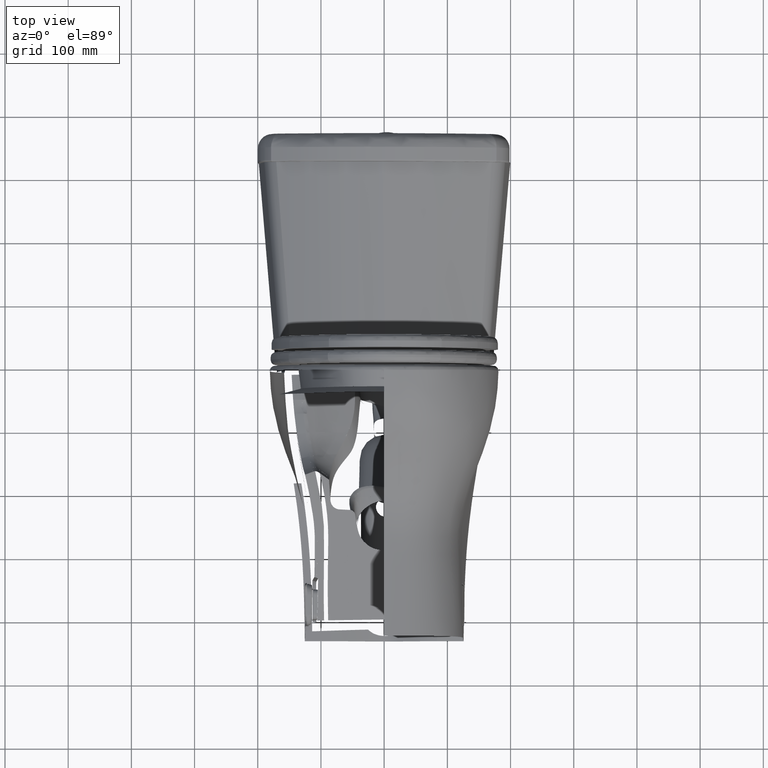
[diagram: clean part render]
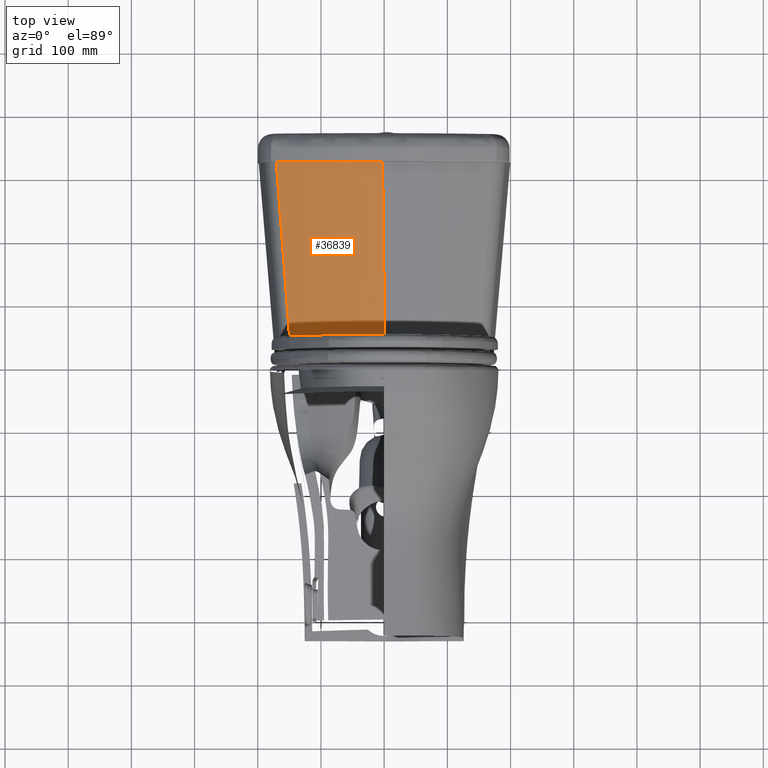
[diagram: same view with one face highlighted and labeled with its STEP entity id]
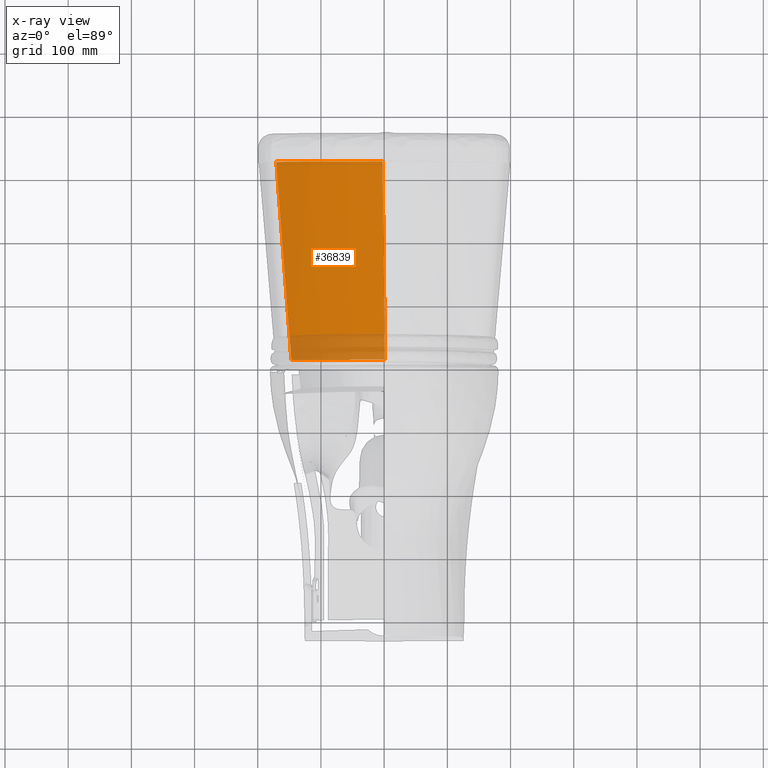
[diagram: x-ray of the same camera — body ghosted, the highlighted face saturated]
A machine part, top view. The second image highlights one B-rep face of the part: STEP entity #36839.
The next image is the same camera in x-ray: the body ghosted, the highlighted face saturated — about 12% of this face is hidden behind the body in this view.
In plain terms, the highlighted face is a freeform B-spline surface patch.
Its self-contained STEP definition (entity closure, byte-faithful):
#1863 = B_SPLINE_CURVE_WITH_KNOTS ( 'NONE', 3,
 ( #4499, #29446, #77283, #89532, #16754, #101733, #41126, #115035, #126246, #138452, #114512, #53853, #77790, #90069, #41630, #126758, #138955, #66084, #78317, #90589, #102786, #56469, #91105, #68160, #19345, #54904, #151693, #141536, #18840, #153774, #80915, #67129, #6587, #103821, #115565, #55420, #128858, #19879, #44736, #55941, #104339, #56971, #66617, #78840, #141022, #8164, #79374, #91629, #31020, #116583, #93177, #18316, #20399, #6070, #43705, #153266, #103299 ),
 .UNSPECIFIED., .F., .F.,
 ( 4, 2, 2, 1, 1, 1, 2, 2, 1, 1, 2, 2, 2, 2, 1, 1, 1, 2, 2, 1, 1, 2, 2, 2, 1, 1, 1, 1, 2, 2, 1, 1, 1, 2, 2, 2, 4 ),
 ( 0.0000000000000000000, 0.2499999999999329400, 0.3749999999998994700, 0.3906249999998953100, 0.3984374999998932500, 0.3994140624998930900, 0.3999023437498930300, 0.4003906249998929200, 0.4023437499998925900, 0.4062499999998916400, 0.4374999999998840900, 0.4999999999998687700, 0.6249999999998381300, 0.6874999999998229200, 0.6953124999998210300, 0.6992187499998201400, 0.6997070312498200300, 0.6999511718748200300, 0.7001953124998200300, 0.7011718749998203700, 0.7031249999998210300, 0.7187499999998263600, 0.7499999999998371300, 0.8124999999998588900, 0.8164062499998600000, 0.8183593749998604400, 0.8193359374998606700, 0.8198242187498611100, 0.8199462890623616700, 0.8200073242186118900, 0.8200683593748621100, 0.8203124999998624400, 0.8281249999998685500, 0.8437499999998804300, 0.8749999999999044100, 0.9374999999999522600, 1.000000000000000000 ),
 .UNSPECIFIED. ) ;
#4499 = CARTESIAN_POINT ( 'NONE',  ( -0.1009708943407856700, 2.007855135899559300, 12.85394922033267800 ) ) ;
#6070 = CARTESIAN_POINT ( 'NONE',  ( -6.310054709846395000, 3.320941673069696800, 12.85317582866769500 ) ) ;
#6587 = CARTESIAN_POINT ( 'NONE',  ( -4.924167115172977600, 2.791838382121605700, 12.85353780140835200 ) ) ;
#7658 = CARTESIAN_POINT ( 'NONE',  ( 0.04925238442629920700, 2.336544645559685200, 0.4863604973620472800 ) ) ;
#7848 = CARTESIAN_POINT ( 'NONE',  ( -3.912345336578346700, 2.829122161090865900, 0.4863604973620472300 ) ) ;
#8164 = CARTESIAN_POINT ( 'NONE',  ( -5.590960251819283600, 3.027941041854083100, 12.85343232102093800 ) ) ;
#16754 = CARTESIAN_POINT ( 'NONE',  ( -2.368883790437422000, 2.180741970589494400, 12.85379336504204400 ) ) ;
#18316 = CARTESIAN_POINT ( 'NONE',  ( -5.952700030900874000, 3.170189459257922100, 12.85333499023696800 ) ) ;
#18840 = CARTESIAN_POINT ( 'NONE',  ( -4.815762638485126400, 2.756690983426943700, 12.85355143473603200 ) ) ;
#19345 = CARTESIAN_POINT ( 'NONE',  ( -4.804830328791982000, 2.753186827105961000, 12.85355278269761900 ) ) ;
#19879 = CARTESIAN_POINT ( 'NONE',  ( -5.560990547422465900, 3.016597933556621800, 12.85343838161074000 ) ) ;
#19925 = EDGE_CURVE ( 'NONE', #35562, #116173, #1863, .T. ) ;
#20399 = CARTESIAN_POINT ( 'NONE',  ( -6.177621318259441300, 3.263376708686260400, 12.85324682759873100 ) ) ;
#21660 = CARTESIAN_POINT ( 'NONE',  ( -5.781204181066930100, 3.539269369709370700, 0.4863604973620472300 ) ) ;
#29446 = CARTESIAN_POINT ( 'NONE',  ( -0.6648024960916874000, 2.010465973864924600, 12.85391774152470000 ) ) ;
#31020 = CARTESIAN_POINT ( 'NONE',  ( -5.683115531178485100, 3.063120938988964400, 12.85341254599836900 ) ) ;
#33825 = CARTESIAN_POINT ( 'NONE',  ( -6.727633459999999800, 3.508353653551732300, 12.93478569421220600 ) ) ;
#34207 = DIRECTION ( 'NONE',  ( 0.07580901738328431300, 0.002476349914124766000, -0.9971192810163104200 ) ) ;
#35562 = VERTEX_POINT ( 'NONE', #141636 ) ;
#36103 = LINE ( 'NONE', #154891, #85511 ) ;
#36839 = ADVANCED_FACE ( 'NONE', ( #60020 ), #138058, .T. ) ;
#38952 = B_SPLINE_CURVE_WITH_KNOTS ( 'NONE', 6,
 ( #95439, #155006, #106091, #130588, #94932, #156045, #44927 ),
 .UNSPECIFIED., .F., .F.,
 ( 7, 7 ),
 ( 0.0000000000000000000, 0.1522200033905786700 ),
 .UNSPECIFIED. ) ;
#41126 = CARTESIAN_POINT ( 'NONE',  ( -2.741403669703184500, 2.244194735100808000, 12.85376144613703700 ) ) ;
#41630 = CARTESIAN_POINT ( 'NONE',  ( -2.946950297549087800, 2.281535613901883400, 12.85374342127313500 ) ) ;
#43402 = CARTESIAN_POINT ( 'NONE',  ( -0.9495624528669290900, 2.340360766401063100, 0.4863604973620472300 ) ) ;
#43705 = CARTESIAN_POINT ( 'NONE',  ( -6.540966903978241700, 3.424179355746784100, 12.85300938312781000 ) ) ;
#44736 = CARTESIAN_POINT ( 'NONE',  ( -5.570504500592838900, 3.020189663712593600, 12.85343648529373600 ) ) ;
#44927 = CARTESIAN_POINT ( 'NONE',  ( 0.04925238442629920700, 2.336544645559685200, 0.4863604973620472800 ) ) ;
#47333 = ORIENTED_EDGE ( 'NONE', *, *, #135368, .F. ) ;
#49505 = CARTESIAN_POINT ( 'NONE',  ( -0.1019527769398818900, 2.005706770397008000, 12.93478569421220600 ) ) ;
#51615 = EDGE_CURVE ( 'NONE', #81928, #144019, #38952, .T. ) ;
#53853 = CARTESIAN_POINT ( 'NONE',  ( -2.824814762938143700, 2.259159516752693000, 12.85375416214346500 ) ) ;
#54904 = CARTESIAN_POINT ( 'NONE',  ( -4.812876387233449900, 2.755765466038274900, 12.85355179079233800 ) ) ;
#55420 = CARTESIAN_POINT ( 'NONE',  ( -5.330465642052421200, 2.930935817184745500, 12.85348040094861200 ) ) ;
#55941 = CARTESIAN_POINT ( 'NONE',  ( -5.581411585778848700, 3.024319259327297200, 12.85343427565212300 ) ) ;
#56194 = CARTESIAN_POINT ( 'NONE',  ( -3.513764868512598400, 2.320630137027953000, 12.93478569421220600 ) ) ;
#56469 = CARTESIAN_POINT ( 'NONE',  ( -4.638348821049378400, 2.700491976601137700, 12.85357300788953000 ) ) ;
#56971 = CARTESIAN_POINT ( 'NONE',  ( -5.589315536978490200, 3.027316782207685200, 12.85343265903586000 ) ) ;
#60020 = FACE_OUTER_BOUND ( 'NONE', #109557, .T. ) ;
#66084 = CARTESIAN_POINT ( 'NONE',  ( -3.435855740942499500, 2.381793169232849600, 12.85369875199942400 ) ) ;
#66617 = CARTESIAN_POINT ( 'NONE',  ( -5.590274713055502600, 3.027680828414132100, 12.85343246195449800 ) ) ;
#67129 = CARTESIAN_POINT ( 'NONE',  ( -4.877768521421965700, 2.776645699501931700, 12.85354373823752500 ) ) ;
#67859 = CARTESIAN_POINT ( 'NONE',  ( -5.695657185393701000, 3.020748184695669600, 12.93478569421220600 ) ) ;
#68160 = CARTESIAN_POINT ( 'NONE',  ( -4.783572445602014300, 2.746391908158452000, 12.85355539503301800 ) ) ;
#77283 = CARTESIAN_POINT ( 'NONE',  ( -1.232499521538620500, 2.043548690959058800, 12.85388055984839200 ) ) ;
#77790 = CARTESIAN_POINT ( 'NONE',  ( -2.831407876310939800, 2.260355558236567800, 12.85375358405563500 ) ) ;
#78317 = CARTESIAN_POINT ( 'NONE',  ( -3.880906782835292600, 2.485459943668300500, 12.85365578811315700 ) ) ;
#78840 = CARTESIAN_POINT ( 'NONE',  ( -5.590562358572509700, 3.027790008007068300, 12.85343240283161100 ) ) ;
#79058 = ORIENTED_EDGE ( 'NONE', *, *, #51615, .T. ) ;
#79374 = CARTESIAN_POINT ( 'NONE',  ( -5.591845047604036400, 3.028276917818387000, 12.85343213900952000 ) ) ;
#80600 = CARTESIAN_POINT ( 'NONE',  ( -4.862414244547244000, 3.147516010407756000, 0.4863604973620472300 ) ) ;
#80915 = CARTESIAN_POINT ( 'NONE',  ( -4.827151966179156000, 2.760347188992069900, 12.85355002710603700 ) ) ;
#81928 = VERTEX_POINT ( 'NONE', #124497 ) ;
#83425 = CARTESIAN_POINT ( 'NONE',  ( -1.948072567012205000, 2.423925861557008100, 0.4863604973620472300 ) ) ;
#85511 = VECTOR ( 'NONE', #34207, 39.37007874015748100 ) ;
#89532 = CARTESIAN_POINT ( 'NONE',  ( -2.084707969168077700, 2.140528388006354400, 12.85381623303144000 ) ) ;
#90069 = CARTESIAN_POINT ( 'NONE',  ( -2.847212497039546300, 2.263231022657661300, 12.85375219708396300 ) ) ;
#90589 = CARTESIAN_POINT ( 'NONE',  ( -4.152084756804213400, 2.557689557902326900, 12.85362774505544100 ) ) ;
#91105 = CARTESIAN_POINT ( 'NONE',  ( -4.762949514396508400, 2.739846520705987200, 12.85355790814432600 ) ) ;
#91629 = CARTESIAN_POINT ( 'NONE',  ( -5.615369182105499800, 3.037209317000809900, 12.85342728975358300 ) ) ;
#93177 = CARTESIAN_POINT ( 'NONE',  ( -5.873346554816043500, 3.137992825999313100, 12.85336132182332800 ) ) ;
#93796 = CARTESIAN_POINT ( 'NONE',  ( -4.621086649720473000, 2.623290052630944800, 12.93478569421220600 ) ) ;
#94932 = CARTESIAN_POINT ( 'NONE',  ( -1.948072567012205000, 2.423925861557008100, 0.4863604973620472300 ) ) ;
#95439 = CARTESIAN_POINT ( 'NONE',  ( -5.781204181068899200, 3.539269369710177600, 0.4863604973620472800 ) ) ;
#97561 = CARTESIAN_POINT ( 'NONE',  ( -6.721400725348907200, 3.508557249808648100, 12.85280626607136300 ) ) ;
#98432 = CARTESIAN_POINT ( 'NONE',  ( 0.04925238442429134100, 2.336544645559685200, 0.4863604973620472300 ) ) ;
#99953 = ORIENTED_EDGE ( 'NONE', *, *, #19925, .T. ) ;
#101733 = CARTESIAN_POINT ( 'NONE',  ( -2.688193498272745300, 2.234969607255261200, 12.85376603462224700 ) ) ;
#102786 = CARTESIAN_POINT ( 'NONE',  ( -4.521454464408641600, 2.664921807681619500, 12.85358657976854600 ) ) ;
#103299 = CARTESIAN_POINT ( 'NONE',  ( -6.721400725348907200, 3.508557249808648100, 12.85280626607136300 ) ) ;
#103821 = CARTESIAN_POINT ( 'NONE',  ( -5.044237598017871500, 2.831675626689886400, 12.85352201975132000 ) ) ;
#104339 = CARTESIAN_POINT ( 'NONE',  ( -5.586817029053373000, 3.026368777621502500, 12.85343317151337500 ) ) ;
#104399 = CARTESIAN_POINT ( 'NONE',  ( -0.02635019625460630100, 2.171125707978346600, 6.710573095787125900 ) ) ;
#104726 = LINE ( 'NONE', #104399, #156139 ) ;
#105414 = DIRECTION ( 'NONE',  ( 0.01214134690860982900, 0.02656534589542945700, -0.9995733440286915800 ) ) ;
#106091 = CARTESIAN_POINT ( 'NONE',  ( -3.912345336578346700, 2.829122161090865900, 0.4863604973620472300 ) ) ;
#106114 = ORIENTED_EDGE ( 'NONE', *, *, #142307, .T. ) ;
#109557 = EDGE_LOOP ( 'NONE', ( #106114, #79058, #47333, #99953 ) ) ;
#114512 = CARTESIAN_POINT ( 'NONE',  ( -2.823411179632383700, 2.258905102976644000, 12.85375428518172900 ) ) ;
#115035 = CARTESIAN_POINT ( 'NONE',  ( -2.796816151726603000, 2.254097125697713800, 12.85375661425363000 ) ) ;
#115565 = CARTESIAN_POINT ( 'NONE',  ( -5.119405952414145300, 2.857329921884313800, 12.85351156516320600 ) ) ;
#116173 = VERTEX_POINT ( 'NONE', #97561 ) ;
#116583 = CARTESIAN_POINT ( 'NONE',  ( -5.747638824225625800, 3.088309292652978900, 12.85339623526327900 ) ) ;
#120312 = CARTESIAN_POINT ( 'NONE',  ( -1.243314312298425200, 2.010995457236141700, 12.93478569421220600 ) ) ;
#121194 = CARTESIAN_POINT ( 'NONE',  ( -2.384213800225590600, 2.115986701308661700, 12.93478569421220600 ) ) ;
#124497 = CARTESIAN_POINT ( 'NONE',  ( -5.781204181068899200, 3.539269369710177600, 0.4863604973620472800 ) ) ;
#126246 = CARTESIAN_POINT ( 'NONE',  ( -2.817870638399185200, 2.257901797436451000, 12.85375477069781000 ) ) ;
#126758 = CARTESIAN_POINT ( 'NONE',  ( -3.039403090560597800, 2.299394957829472600, 12.85373515477109400 ) ) ;
#128858 = CARTESIAN_POINT ( 'NONE',  ( -5.451917200397592600, 2.975502976912051300, 12.85345989087185000 ) ) ;
#129447 = CARTESIAN_POINT ( 'NONE',  ( -2.938318859439370100, 2.587209558632913400, 0.4863604973620472300 ) ) ;
#130588 = CARTESIAN_POINT ( 'NONE',  ( -2.938318859439370100, 2.587209558632913400, 0.4863604973620472300 ) ) ;
#135368 = EDGE_CURVE ( 'NONE', #35562, #144019, #104726, .T. ) ;
#138058 = B_SPLINE_SURFACE_WITH_KNOTS ( 'NONE', 6, 1, ( 
 ( #21660, #33825 ),
 ( #80600, #67859 ),
 ( #7848, #93796 ),
 ( #129447, #56194 ),
 ( #83425, #121194 ),
 ( #43402, #120312 ),
 ( #98432, #49505 ) ),
 .UNSPECIFIED., .F., .F., .F.,
 ( 7, 7 ),
 ( 2, 2 ),
 ( 4.270985025676999700, 4.707755348686999900 ),
 ( 0.0000000000000000000, 1.000000000000000000 ),
 .UNSPECIFIED. ) ;
#138452 = CARTESIAN_POINT ( 'NONE',  ( -2.821194971155535700, 2.258503634204465100, 12.85375447941426900 ) ) ;
#138955 = CARTESIAN_POINT ( 'NONE',  ( -3.281128142156114300, 2.348028611197968000, 12.85371322317812000 ) ) ;
#141022 = CARTESIAN_POINT ( 'NONE',  ( -5.590606299118208600, 3.027806685752476600, 12.85343239380218900 ) ) ;
#141536 = CARTESIAN_POINT ( 'NONE',  ( -4.814992183716348100, 2.756443883896730500, 12.85355152980351100 ) ) ;
#141636 = CARTESIAN_POINT ( 'NONE',  ( -0.1009708943407856700, 2.007855135899559300, 12.85394922033267800 ) ) ;
#142307 = EDGE_CURVE ( 'NONE', #116173, #81928, #36103, .T. ) ;
#144019 = VERTEX_POINT ( 'NONE', #7658 ) ;
#151693 = CARTESIAN_POINT ( 'NONE',  ( -4.814145977163161800, 2.756172528871841300, 12.85355163419630000 ) ) ;
#153266 = CARTESIAN_POINT ( 'NONE',  ( -6.639448492988449000, 3.469853126214099200, 12.85291393651895900 ) ) ;
#153774 = CARTESIAN_POINT ( 'NONE',  ( -4.819116677848718700, 2.757766993113755800, 12.85355102066989200 ) ) ;
#154891 = CARTESIAN_POINT ( 'NONE',  ( -6.254418820533464500, 3.523811511630551500, 6.710573095787125900 ) ) ;
#155006 = CARTESIAN_POINT ( 'NONE',  ( -4.862414244547244000, 3.147516010407756000, 0.4863604973620472300 ) ) ;
#156045 = CARTESIAN_POINT ( 'NONE',  ( -0.9495624528669290900, 2.340360766401063100, 0.4863604973620472300 ) ) ;
#156139 = VECTOR ( 'NONE', #105414, 39.37007874015748900 ) ;